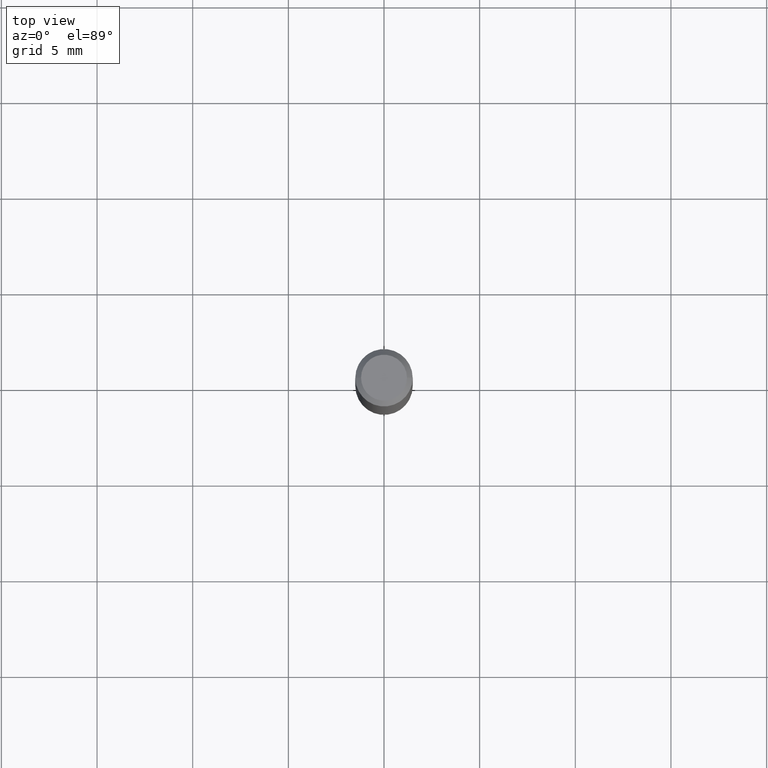
[diagram: clean part render]
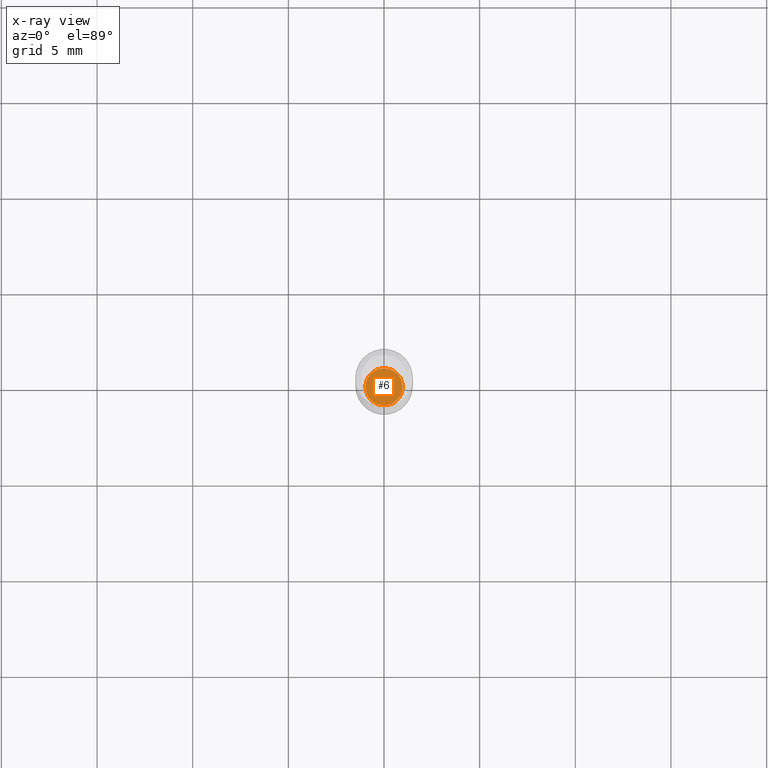
[diagram: x-ray — body ghosted, one internal face saturated and labeled with its STEP entity id]
A machine part, top view, then the same camera in x-ray: the body is ghosted and one INTERNAL B-rep face — a face not visible from any outside direction — is saturated and labeled: STEP entity #6.
In plain terms, the highlighted planar face has unit normal (-0, 0, 1).
Its self-contained STEP definition (entity closure, byte-faithful):
#6 = ADVANCED_FACE ( 'NONE', ( #465 ), #451, .F. ) ;
#9 = DIRECTION ( 'NONE',  ( -2.438088387897960049E-29, 3.491481338843145188E-15, 1.000000000000000000 ) ) ;
#31 = CIRCLE ( 'NONE', #478, 0.03829999999999999377 ) ;
#36 = CARTESIAN_POINT ( 'NONE',  ( 2.676565608369631794E-29, -3.821426325363822773E-15, -1.094499999999999806 ) ) ;
#140 = CIRCLE ( 'NONE', #486, 0.03829999999999999377 ) ;
#147 = VERTEX_POINT ( 'NONE', #291 ) ;
#179 = EDGE_CURVE ( 'NONE', #147, #186, #140, .T. ) ;
#186 = VERTEX_POINT ( 'NONE', #325 ) ;
#204 = AXIS2_PLACEMENT_3D ( 'NONE', #36, #9, #461 ) ;
#228 = CARTESIAN_POINT ( 'NONE',  ( 2.676565608369631794E-29, -3.821426325363822773E-15, -1.094499999999999806 ) ) ;
#249 = DIRECTION ( 'NONE',  ( -2.445468806185136597E-29, 3.491481338843145583E-15, 1.000000000000000000 ) ) ;
#284 = DIRECTION ( 'NONE',  ( -2.445468806185136597E-29, 3.491481338843145583E-15, 1.000000000000000000 ) ) ;
#291 = CARTESIAN_POINT ( 'NONE',  ( -0.03829999999999999377, -3.546639230393592802E-15, -1.094499999999999806 ) ) ;
#322 = CARTESIAN_POINT ( 'NONE',  ( 2.676565608369631794E-29, -3.821426325363822773E-15, -1.094499999999999806 ) ) ;
#325 = CARTESIAN_POINT ( 'NONE',  ( 0.03829999999999999377, -4.088873795919206586E-15, -1.094499999999999806 ) ) ;
#376 = DIRECTION ( 'NONE',  ( 1.000000000000000000, -6.982962677686273021E-15, 0.000000000000000000 ) ) ;
#392 = DIRECTION ( 'NONE',  ( 1.000000000000000000, -6.982962677686273021E-15, 0.000000000000000000 ) ) ;
#398 = EDGE_LOOP ( 'NONE', ( #409, #459 ) ) ;
#409 = ORIENTED_EDGE ( 'NONE', *, *, #433, .F. ) ;
#433 = EDGE_CURVE ( 'NONE', #186, #147, #31, .T. ) ;
#451 = PLANE ( 'NONE',  #204 ) ;
#459 = ORIENTED_EDGE ( 'NONE', *, *, #179, .F. ) ;
#461 = DIRECTION ( 'NONE',  ( 1.000000000000000000, -6.982962677686265922E-15, 4.876176775795935793E-29 ) ) ;
#465 = FACE_OUTER_BOUND ( 'NONE', #398, .T. ) ;
#478 = AXIS2_PLACEMENT_3D ( 'NONE', #322, #284, #392 ) ;
#486 = AXIS2_PLACEMENT_3D ( 'NONE', #228, #249, #376 ) ;